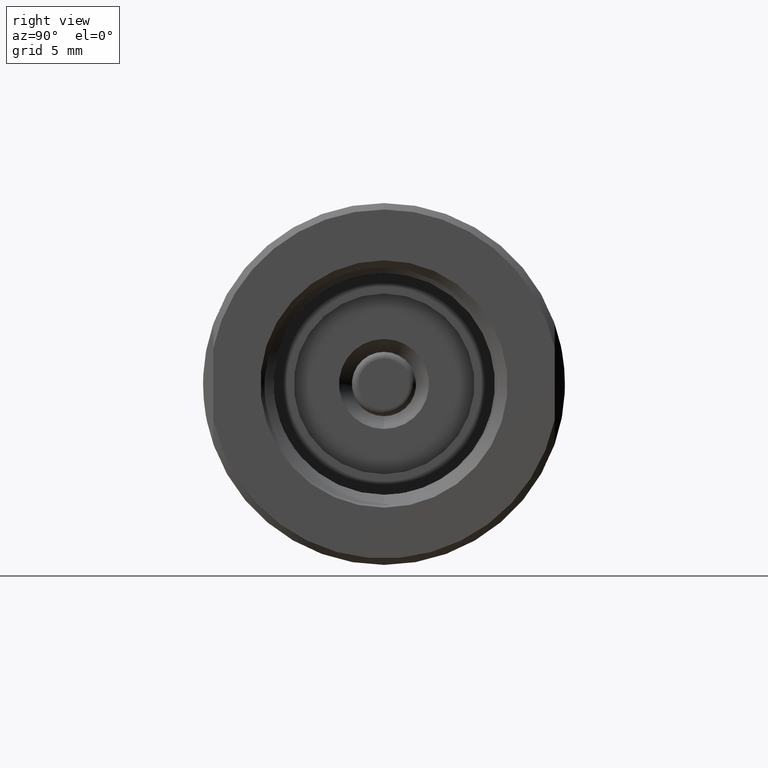
[diagram: clean part render]
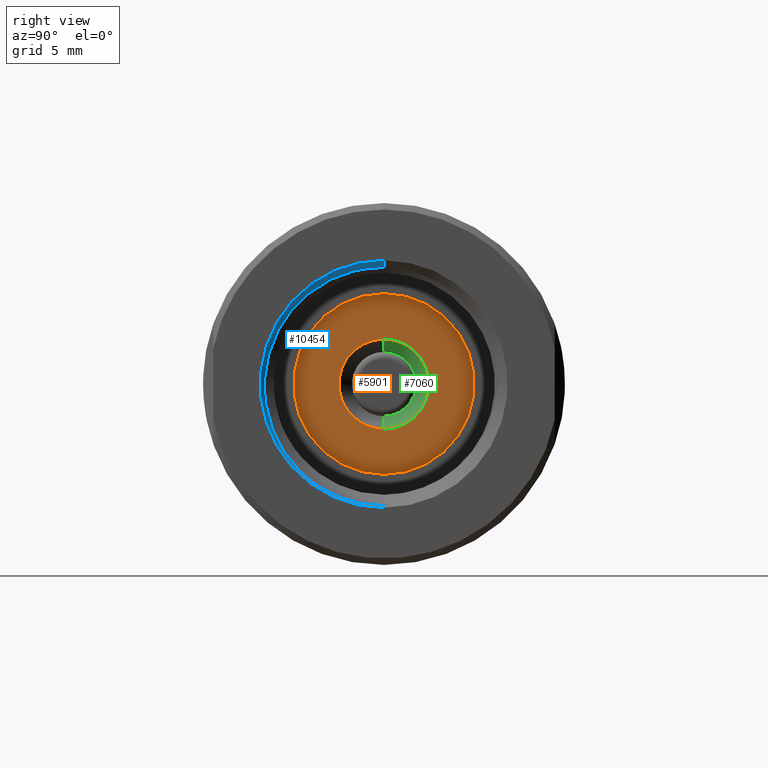
[diagram: same view with three faces highlighted in distinct colors, each labeled with its STEP entity id]
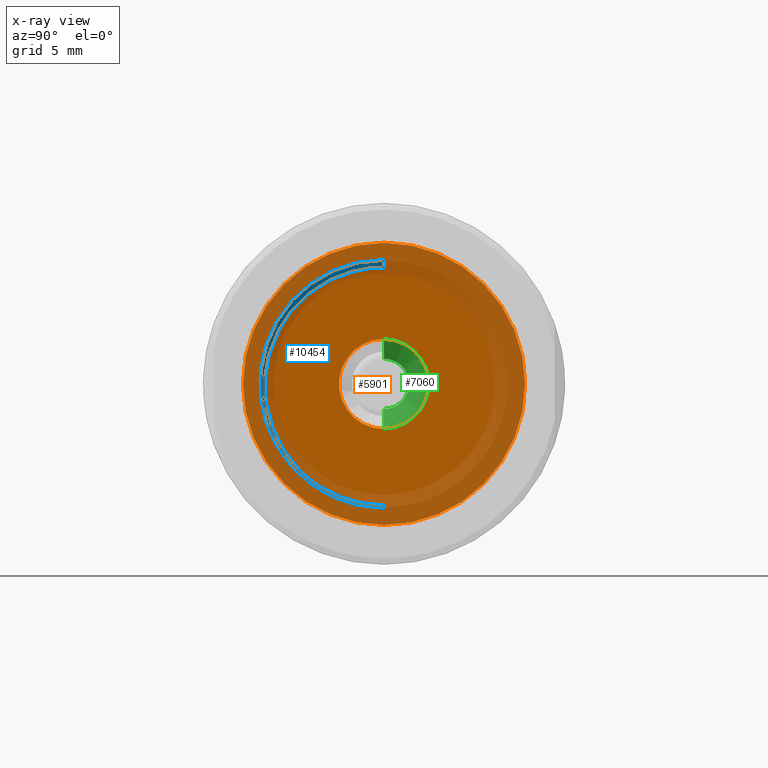
[diagram: x-ray of the same camera — body ghosted, the three highlighted faces saturated]
A machine part, right view with three faces highlighted in distinct colors.
The next image is the same camera in x-ray (body ghosted, the three faces saturated) — at least one of them is partly hidden behind the body in this view.
Their STEP definitions:

[orange] entity #5901 — the highlighted planar face has unit normal (-1, 0, -0).
#198 = EDGE_CURVE ( 'NONE', #2542, #11467, #11635, .T. ) ;
#225 = CARTESIAN_POINT ( 'NONE',  ( 0.3750000000000000555, 0.4387499999999999734, 0.0000000000000000000 ) ) ;
#312 = EDGE_LOOP ( 'NONE', ( #8966, #1365 ) ) ;
#412 = CARTESIAN_POINT ( 'NONE',  ( 0.3750000000000000555, 0.0000000000000000000, 0.0000000000000000000 ) ) ;
#581 = CARTESIAN_POINT ( 'NONE',  ( 0.3750000000000000555, 0.0000000000000000000, 0.0000000000000000000 ) ) ;
#644 = ORIENTED_EDGE ( 'NONE', *, *, #7665, .T. ) ;
#1143 = DIRECTION ( 'NONE',  ( -0.0000000000000000000, 0.0000000000000000000, 1.000000000000000000 ) ) ;
#1186 = EDGE_LOOP ( 'NONE', ( #8943, #644 ) ) ;
#1365 = ORIENTED_EDGE ( 'NONE', *, *, #198, .F. ) ;
#1594 = DIRECTION ( 'NONE',  ( 0.0000000000000000000, 0.0000000000000000000, 1.000000000000000000 ) ) ;
#2039 = FACE_OUTER_BOUND ( 'NONE', #312, .T. ) ;
#2125 = CARTESIAN_POINT ( 'NONE',  ( 0.3750000000000000555, 1.714505518806294700E-17, 0.1400000000000000133 ) ) ;
#2542 = VERTEX_POINT ( 'NONE', #4538 ) ;
#3121 = DIRECTION ( 'NONE',  ( -1.000000000000000000, -0.0000000000000000000, -0.0000000000000000000 ) ) ;
#3893 = DIRECTION ( 'NONE',  ( -1.000000000000000000, 0.0000000000000000000, -0.0000000000000000000 ) ) ;
#4302 = DIRECTION ( 'NONE',  ( -1.000000000000000000, -0.0000000000000000000, -0.0000000000000000000 ) ) ;
#4380 = VERTEX_POINT ( 'NONE', #11597 ) ;
#4538 = CARTESIAN_POINT ( 'NONE',  ( 0.3750000000000000555, 5.556834851131116124E-17, -0.4387499999999999734 ) ) ;
#4874 = CARTESIAN_POINT ( 'NONE',  ( 0.3750000000000000555, 0.0000000000000000000, 0.0000000000000000000 ) ) ;
#4941 = EDGE_CURVE ( 'NONE', #4380, #7845, #6494, .T. ) ;
#5369 = CARTESIAN_POINT ( 'NONE',  ( 0.3750000000000000555, 0.0000000000000000000, 0.0000000000000000000 ) ) ;
#5862 = FACE_BOUND ( 'NONE', #1186, .T. ) ;
#5901 = ADVANCED_FACE ( 'NONE', ( #2039, #5862 ), #6600, .F. ) ;
#6474 = EDGE_CURVE ( 'NONE', #11467, #2542, #10079, .T. ) ;
#6494 = CIRCLE ( 'NONE', #8604, 0.1400000000000000133 ) ;
#6600 = PLANE ( 'NONE',  #11755 ) ;
#6625 = DIRECTION ( 'NONE',  ( 0.0000000000000000000, 0.0000000000000000000, 1.000000000000000000 ) ) ;
#6967 = DIRECTION ( 'NONE',  ( -1.000000000000000000, -0.0000000000000000000, -0.0000000000000000000 ) ) ;
#7021 = AXIS2_PLACEMENT_3D ( 'NONE', #581, #4302, #7979 ) ;
#7022 = CIRCLE ( 'NONE', #7207, 0.1400000000000000133 ) ;
#7207 = AXIS2_PLACEMENT_3D ( 'NONE', #5369, #11815, #1594 ) ;
#7665 = EDGE_CURVE ( 'NONE', #7845, #4380, #7022, .T. ) ;
#7845 = VERTEX_POINT ( 'NONE', #2125 ) ;
#7979 = DIRECTION ( 'NONE',  ( 0.0000000000000000000, 0.0000000000000000000, 1.000000000000000000 ) ) ;
#8604 = AXIS2_PLACEMENT_3D ( 'NONE', #4874, #3121, #6625 ) ;
#8835 = DIRECTION ( 'NONE',  ( 0.0000000000000000000, 0.0000000000000000000, 1.000000000000000000 ) ) ;
#8943 = ORIENTED_EDGE ( 'NONE', *, *, #4941, .T. ) ;
#8966 = ORIENTED_EDGE ( 'NONE', *, *, #6474, .F. ) ;
#10079 = CIRCLE ( 'NONE', #10662, 0.4387499999999999734 ) ;
#10662 = AXIS2_PLACEMENT_3D ( 'NONE', #412, #6967, #8835 ) ;
#11157 = CARTESIAN_POINT ( 'NONE',  ( 0.3750000000000000555, 0.0000000000000000000, 0.4387499999999999734 ) ) ;
#11467 = VERTEX_POINT ( 'NONE', #11157 ) ;
#11597 = CARTESIAN_POINT ( 'NONE',  ( 0.3750000000000000555, 0.0000000000000000000, -0.1400000000000000133 ) ) ;
#11635 = CIRCLE ( 'NONE', #7021, 0.4387499999999999734 ) ;
#11755 = AXIS2_PLACEMENT_3D ( 'NONE', #225, #3893, #1143 ) ;
#11815 = DIRECTION ( 'NONE',  ( -1.000000000000000000, -0.0000000000000000000, -0.0000000000000000000 ) ) ;

[blue] entity #10454 — the highlighted conical surface has half-angle 45 deg.
#69 = VERTEX_POINT ( 'NONE', #2754 ) ;
#359 = CARTESIAN_POINT ( 'NONE',  ( 1.243829117187445599, -0.1940540280819864072, -0.3248070221584126727 ) ) ;
#716 = LINE ( 'NONE', #4379, #7811 ) ;
#908 = CARTESIAN_POINT ( 'NONE',  ( 1.231800396466433245, -0.2329579901641804784, 0.2828978598890470875 ) ) ;
#969 = CARTESIAN_POINT ( 'NONE',  ( 1.227768417192140804, -0.02022817364264506770, 0.3622996671921415168 ) ) ;
#1028 = CARTESIAN_POINT ( 'NONE',  ( 1.237425168069480330, -0.3724572152574900930, -0.005478136195907729045 ) ) ;
#1094 = CARTESIAN_POINT ( 'NONE',  ( 1.235400245082683757, -0.3528335042444856740, 0.1129695321714525580 ) ) ;
#1326 = CARTESIAN_POINT ( 'NONE',  ( 1.227434301395928129, 0.0000000000000000000, 0.3619655513959281756 ) ) ;
#1752 = VERTEX_POINT ( 'NONE', #2846 ) ;
#1844 = CARTESIAN_POINT ( 'NONE',  ( 1.250000000000000222, 4.709149644846310570E-17, 0.3845312500000003242 ) ) ;
#1873 = CARTESIAN_POINT ( 'NONE',  ( 1.229157640438375054, -0.09932497245503729699, 0.3504460496138023240 ) ) ;
#1933 = CARTESIAN_POINT ( 'NONE',  ( 1.231284761436510999, -0.2087604251397886801, 0.3010771255875967500 ) ) ;
#1991 = CARTESIAN_POINT ( 'NONE',  ( 1.229874661038250494, -0.1377674818818545588, 0.3379645894918096305 ) ) ;
#2339 = CARTESIAN_POINT ( 'NONE',  ( 1.243829117187500222, -0.01698433111476442547, -0.3783603671875002683 ) ) ;
#2355 = EDGE_CURVE ( 'NONE', #69, #4607, #8533, .T. ) ;
#2550 = CARTESIAN_POINT ( 'NONE',  ( 1.250000000000000222, 0.0000000000000000000, -0.3845312500000003242 ) ) ;
#2641 = VERTEX_POINT ( 'NONE', #1844 ) ;
#2690 = CARTESIAN_POINT ( 'NONE',  ( 1.236096995481241079, -0.3632986524703964992, 0.07403399313372902024 ) ) ;
#2749 = CARTESIAN_POINT ( 'NONE',  ( 1.234350419798898812, -0.3286571237148261382, 0.1678078297220422510 ) ) ;
#2754 = CARTESIAN_POINT ( 'NONE',  ( 1.243829117187445599, -0.1940540280819864072, -0.3248070221584126727 ) ) ;
#2787 = ORIENTED_EDGE ( 'NONE', *, *, #2355, .T. ) ;
#2846 = CARTESIAN_POINT ( 'NONE',  ( 1.250000000000000222, 0.0000000000000000000, -0.3845312500000003242 ) ) ;
#2878 = CARTESIAN_POINT ( 'NONE',  ( 1.232304304866985944, -0.2558330791826700645, 0.2630946308993390992 ) ) ;
#2936 = CARTESIAN_POINT ( 'NONE',  ( 1.241185947908158838, -0.3093491797301290980, -0.2141692881143540395 ) ) ;
#3399 = LINE ( 'NONE', #2550, #6781 ) ;
#3595 = CARTESIAN_POINT ( 'NONE',  ( 1.233999148593117212, -0.3187101248041582235, 0.1853100035222619013 ) ) ;
#3787 = CARTESIAN_POINT ( 'NONE',  ( 1.233300998620456834, -0.2962971977977892357, 0.2188931210837034291 ) ) ;
#3907 = CARTESIAN_POINT ( 'NONE',  ( 1.243829117187500000, -0.06764632415348248440, -0.3726514089511438477 ) ) ;
#4081 = EDGE_LOOP ( 'NONE', ( #2787, #4752, #6359, #6945, #11117 ) ) ;
#4379 = CARTESIAN_POINT ( 'NONE',  ( 1.250000000000000222, 4.709149644846310570E-17, 0.3845312500000003242 ) ) ;
#4568 = CARTESIAN_POINT ( 'NONE',  ( 1.239115145720081523, -0.3591730727130120204, -0.1049154355038835890 ) ) ;
#4607 = VERTEX_POINT ( 'NONE', #5909 ) ;
#4685 = CARTESIAN_POINT ( 'NONE',  ( 1.236609597095378987, -0.3686217199289025248, 0.04431203772934523555 ) ) ;
#4752 = ORIENTED_EDGE ( 'NONE', *, *, #10147, .T. ) ;
#4753 = CARTESIAN_POINT ( 'NONE',  ( 1.243829117187445599, -0.1940540280819864072, -0.3248070221584126727 ) ) ;
#4808 = CARTESIAN_POINT ( 'NONE',  ( 1.235922402550180266, -0.3609629833411857613, 0.08392082465510787570 ) ) ;
#4926 = CARTESIAN_POINT ( 'NONE',  ( 1.243829117187500222, 4.633578126003893285E-17, -0.3783603671875002128 ) ) ;
#5235 = DIRECTION ( 'NONE',  ( 0.0000000000000000000, 0.0000000000000000000, 1.000000000000000000 ) ) ;
#5460 = CARTESIAN_POINT ( 'NONE',  ( 1.231971191963253887, -0.2408171310408360744, 0.2764636942888984983 ) ) ;
#5527 = CARTESIAN_POINT ( 'NONE',  ( 1.228804930695975406, -0.07983064904912669235, 0.3550201350130172129 ) ) ;
#5556 = FACE_OUTER_BOUND ( 'NONE', #4081, .T. ) ;
#5707 = CARTESIAN_POINT ( 'NONE',  ( 1.242490979683887886, -0.2579193162689069063, -0.2757347442226364409 ) ) ;
#5909 = CARTESIAN_POINT ( 'NONE',  ( 1.227434301395928129, 0.0000000000000000000, 0.3619655513959281756 ) ) ;
#6170 = EDGE_CURVE ( 'NONE', #10222, #1752, #3399, .T. ) ;
#6359 = ORIENTED_EDGE ( 'NONE', *, *, #7893, .F. ) ;
#6396 = DIRECTION ( 'NONE',  ( 0.0000000000000000000, 0.0000000000000000000, -1.000000000000000000 ) ) ;
#6426 = CARTESIAN_POINT ( 'NONE',  ( 1.238430036860952432, -0.3676613492438947639, -0.06577362316008306120 ) ) ;
#6609 = CARTESIAN_POINT ( 'NONE',  ( 1.237109099706327209, -0.3718960607719228317, 0.01448697158624041338 ) ) ;
#6781 = VECTOR ( 'NONE', #11662, 39.37007874015748143 ) ;
#6945 = ORIENTED_EDGE ( 'NONE', *, *, #6170, .F. ) ;
#7276 = CARTESIAN_POINT ( 'NONE',  ( 1.233822570895654946, -0.3133293611245474564, 0.1939346926533830895 ) ) ;
#7397 = CARTESIAN_POINT ( 'NONE',  ( 1.240152538596114740, -0.3387564007392173115, -0.1613494667232258650 ) ) ;
#7467 = CARTESIAN_POINT ( 'NONE',  ( 1.232466060527134921, -0.2630283545559034541, 0.2561306827310931289 ) ) ;
#7564 = CARTESIAN_POINT ( 'NONE',  ( 1.243829117187500222, 4.633578126003893285E-17, -0.3783603671875002128 ) ) ;
#7584 = CARTESIAN_POINT ( 'NONE',  ( 1.243829117187501110, -0.1333254679309444080, -0.3557148676036290258 ) ) ;
#7811 = VECTOR ( 'NONE', #8050, 39.37007874015748143 ) ;
#7893 = EDGE_CURVE ( 'NONE', #1752, #2641, #11640, .T. ) ;
#8050 = DIRECTION ( 'NONE',  ( 0.7071067811865493491, 8.659560562354910671E-17, 0.7071067811865456854 ) ) ;
#8174 = EDGE_CURVE ( 'NONE', #10222, #69, #10639, .T. ) ;
#8240 = CARTESIAN_POINT ( 'NONE',  ( 1.230936831332570147, -0.1918204885473831223, 0.3117222279454459621 ) ) ;
#8296 = CARTESIAN_POINT ( 'NONE',  ( 1.243486375602227412, -0.2112656544687759042, -0.3141247861670565245 ) ) ;
#8328 = CARTESIAN_POINT ( 'NONE',  ( 1.250000000000000222, 0.0000000000000000000, 0.0000000000000000000 ) ) ;
#8533 = B_SPLINE_CURVE_WITH_KNOTS ( 'NONE', 3,
 ( #4753, #8296, #9388, #5707, #9265, #10166, #2936, #11924, #7397, #10224, #4568, #6426, #9323, #1028, #6609, #4685, #10285, #2690, #4808, #1094, #11862, #11136, #2749, #3595, #7276, #3787, #10035, #7467, #2878, #5460, #908, #1933, #8240, #10099, #1991, #1873, #5527, #9202, #969, #1326 ),
 .UNSPECIFIED., .F., .F.,
 ( 4, 2, 2, 2, 2, 2, 2, 2, 2, 2, 2, 2, 2, 2, 2, 2, 2, 2, 2, 4 ),
 ( 0.0000000000000000000, 0.001534432808799405558, 0.003068865617598811116, 0.004603298426398214939, 0.006137731235197619629, 0.007672164043997023453, 0.009206596852796428143, 0.01074102966159583110, 0.01150824606599553344, 0.01227546247039523579, 0.01380989527919464048, 0.01457711168359434109, 0.01534432808799404344, 0.01687876089679345507, 0.01764597730119316088, 0.01841319370559286669, 0.01994762651439227485, 0.02148205932319168648, 0.02301649213199109811, 0.02455092494079050974 ),
 .UNSPECIFIED. ) ;
#9202 = CARTESIAN_POINT ( 'NONE',  ( 1.228110848768188879, -0.04031429237810708888, 0.3609475006404355146 ) ) ;
#9265 = CARTESIAN_POINT ( 'NONE',  ( 1.242173421424234148, -0.2721661299325688899, -0.2612137556727679444 ) ) ;
#9323 = CARTESIAN_POINT ( 'NONE',  ( 1.238086586504026920, -0.3703650917789981789, -0.04556930000497302902 ) ) ;
#9325 = AXIS2_PLACEMENT_3D ( 'NONE', #11692, #11628, #5235 ) ;
#9388 = CARTESIAN_POINT ( 'NONE',  ( 1.243150201327176019, -0.2274752075941336160, -0.3021664604269317378 ) ) ;
#9391 = CARTESIAN_POINT ( 'NONE',  ( 1.243829117187500666, -0.08424264502627168416, -0.3692530151684487727 ) ) ;
#9953 = DIRECTION ( 'NONE',  ( 1.000000000000000000, 0.0000000000000000000, 0.0000000000000000000 ) ) ;
#10035 = CARTESIAN_POINT ( 'NONE',  ( 1.232961902816429589, -0.2837110272387234344, 0.2344323663665797974 ) ) ;
#10099 = CARTESIAN_POINT ( 'NONE',  ( 1.230232672369240721, -0.1563718969406442116, 0.3301506893197365122 ) ) ;
#10147 = EDGE_CURVE ( 'NONE', #4607, #2641, #716, .T. ) ;
#10166 = CARTESIAN_POINT ( 'NONE',  ( 1.241519885766268594, -0.2978189074066958653, -0.2304755389721145076 ) ) ;
#10222 = VERTEX_POINT ( 'NONE', #7564 ) ;
#10224 = CARTESIAN_POINT ( 'NONE',  ( 1.239459655956602457, -0.3533936857505584062, -0.1240310792777215565 ) ) ;
#10285 = CARTESIAN_POINT ( 'NONE',  ( 1.236440508530066484, -0.3671245574633426600, 0.05423330721856153142 ) ) ;
#10312 = AXIS2_PLACEMENT_3D ( 'NONE', #8328, #9953, #6396 ) ;
#10349 = CARTESIAN_POINT ( 'NONE',  ( 1.243829117187500222, -0.03398173235740348935, -0.3772139175994710381 ) ) ;
#10454 = ADVANCED_FACE ( 'NONE', ( #5556 ), #11473, .F. ) ;
#10639 = B_SPLINE_CURVE_WITH_KNOTS ( 'NONE', 3,
 ( #4926, #2339, #10349, #3907, #9391, #7584, #11318, #359 ),
 .UNSPECIFIED., .F., .F.,
 ( 4, 2, 2, 4 ),
 ( 0.002373086526508532031, 0.003668122281547400200, 0.004963158036586268369, 0.007553229546664003841 ),
 .UNSPECIFIED. ) ;
#11117 = ORIENTED_EDGE ( 'NONE', *, *, #8174, .T. ) ;
#11136 = CARTESIAN_POINT ( 'NONE',  ( 1.234525787922811091, -0.3332477228589533769, 0.1588991262147353423 ) ) ;
#11318 = CARTESIAN_POINT ( 'NONE',  ( 1.243829117187500666, -0.1648683897997218206, -0.3422438085711935751 ) ) ;
#11473 = CONICAL_SURFACE ( 'NONE', #10312, 0.3845312500000003242, 0.7853981633974457255 ) ;
#11628 = DIRECTION ( 'NONE',  ( -1.000000000000000000, -0.0000000000000000000, -0.0000000000000000000 ) ) ;
#11640 = CIRCLE ( 'NONE', #9325, 0.3845312500000003242 ) ;
#11662 = DIRECTION ( 'NONE',  ( 0.7071067811865493491, 0.0000000000000000000, -0.7071067811865456854 ) ) ;
#11692 = CARTESIAN_POINT ( 'NONE',  ( 1.250000000000000222, 0.0000000000000000000, 0.0000000000000000000 ) ) ;
#11862 = CARTESIAN_POINT ( 'NONE',  ( 1.235051097695422095, -0.3458946558472077992, 0.1317099777272135452 ) ) ;
#11924 = CARTESIAN_POINT ( 'NONE',  ( 1.240503435550484479, -0.3298040278970254535, -0.1796727712147917766 ) ) ;

[green] entity #7060 — the highlighted conical surface has half-angle 45 deg.
#171 = EDGE_CURVE ( 'NONE', #7619, #2578, #488, .T. ) ;
#392 = ORIENTED_EDGE ( 'NONE', *, *, #7925, .T. ) ;
#488 = CIRCLE ( 'NONE', #7210, 0.07799999999999999989 ) ;
#842 = ORIENTED_EDGE ( 'NONE', *, *, #171, .T. ) ;
#1294 = DIRECTION ( 'NONE',  ( 0.0000000000000000000, 0.0000000000000000000, -1.000000000000000000 ) ) ;
#1554 = DIRECTION ( 'NONE',  ( 0.0000000000000000000, 0.0000000000000000000, 1.000000000000000000 ) ) ;
#1594 = DIRECTION ( 'NONE',  ( 0.0000000000000000000, 0.0000000000000000000, 1.000000000000000000 ) ) ;
#2125 = CARTESIAN_POINT ( 'NONE',  ( 0.3750000000000000555, 1.714505518806294700E-17, 0.1400000000000000133 ) ) ;
#2382 = CARTESIAN_POINT ( 'NONE',  ( 0.3130000000000002780, 0.0000000000000000000, 0.0000000000000000000 ) ) ;
#2578 = VERTEX_POINT ( 'NONE', #11041 ) ;
#2620 = ORIENTED_EDGE ( 'NONE', *, *, #7665, .F. ) ;
#3148 = AXIS2_PLACEMENT_3D ( 'NONE', #3257, #10486, #1294 ) ;
#3257 = CARTESIAN_POINT ( 'NONE',  ( 0.3130000000000002780, 0.0000000000000000000, 0.0000000000000000000 ) ) ;
#3268 = LINE ( 'NONE', #4805, #10480 ) ;
#3480 = DIRECTION ( 'NONE',  ( 0.7071067811865461294, 0.0000000000000000000, -0.7071067811865489050 ) ) ;
#4380 = VERTEX_POINT ( 'NONE', #11597 ) ;
#4805 = CARTESIAN_POINT ( 'NONE',  ( 0.3130000000000002780, 9.552245033349355435E-18, 0.07799999999999999989 ) ) ;
#5018 = EDGE_LOOP ( 'NONE', ( #8346, #842, #392, #2620 ) ) ;
#5198 = DIRECTION ( 'NONE',  ( 0.7071067811865461294, 8.659560562354950115E-17, 0.7071067811865489050 ) ) ;
#5369 = CARTESIAN_POINT ( 'NONE',  ( 0.3750000000000000555, 0.0000000000000000000, 0.0000000000000000000 ) ) ;
#5407 = CARTESIAN_POINT ( 'NONE',  ( 0.3130000000000002780, 0.0000000000000000000, -0.07799999999999999989 ) ) ;
#7022 = CIRCLE ( 'NONE', #7207, 0.1400000000000000133 ) ;
#7047 = LINE ( 'NONE', #5407, #7985 ) ;
#7060 = ADVANCED_FACE ( 'NONE', ( #10423 ), #8354, .F. ) ;
#7207 = AXIS2_PLACEMENT_3D ( 'NONE', #5369, #11815, #1594 ) ;
#7210 = AXIS2_PLACEMENT_3D ( 'NONE', #2382, #9787, #1554 ) ;
#7619 = VERTEX_POINT ( 'NONE', #7963 ) ;
#7665 = EDGE_CURVE ( 'NONE', #7845, #4380, #7022, .T. ) ;
#7845 = VERTEX_POINT ( 'NONE', #2125 ) ;
#7925 = EDGE_CURVE ( 'NONE', #2578, #4380, #7047, .T. ) ;
#7963 = CARTESIAN_POINT ( 'NONE',  ( 0.3130000000000002780, 0.0000000000000000000, 0.07799999999999999989 ) ) ;
#7985 = VECTOR ( 'NONE', #3480, 39.37007874015748143 ) ;
#8346 = ORIENTED_EDGE ( 'NONE', *, *, #8394, .F. ) ;
#8354 = CONICAL_SURFACE ( 'NONE', #3148, 0.07799999999999999989, 0.7853981633974502774 ) ;
#8394 = EDGE_CURVE ( 'NONE', #7619, #7845, #3268, .T. ) ;
#9787 = DIRECTION ( 'NONE',  ( -1.000000000000000000, -0.0000000000000000000, -0.0000000000000000000 ) ) ;
#10423 = FACE_OUTER_BOUND ( 'NONE', #5018, .T. ) ;
#10480 = VECTOR ( 'NONE', #5198, 39.37007874015748143 ) ;
#10486 = DIRECTION ( 'NONE',  ( 1.000000000000000000, 0.0000000000000000000, 0.0000000000000000000 ) ) ;
#11041 = CARTESIAN_POINT ( 'NONE',  ( 0.3130000000000002780, 9.552245033349355435E-18, -0.07799999999999999989 ) ) ;
#11597 = CARTESIAN_POINT ( 'NONE',  ( 0.3750000000000000555, 0.0000000000000000000, -0.1400000000000000133 ) ) ;
#11815 = DIRECTION ( 'NONE',  ( -1.000000000000000000, -0.0000000000000000000, -0.0000000000000000000 ) ) ;